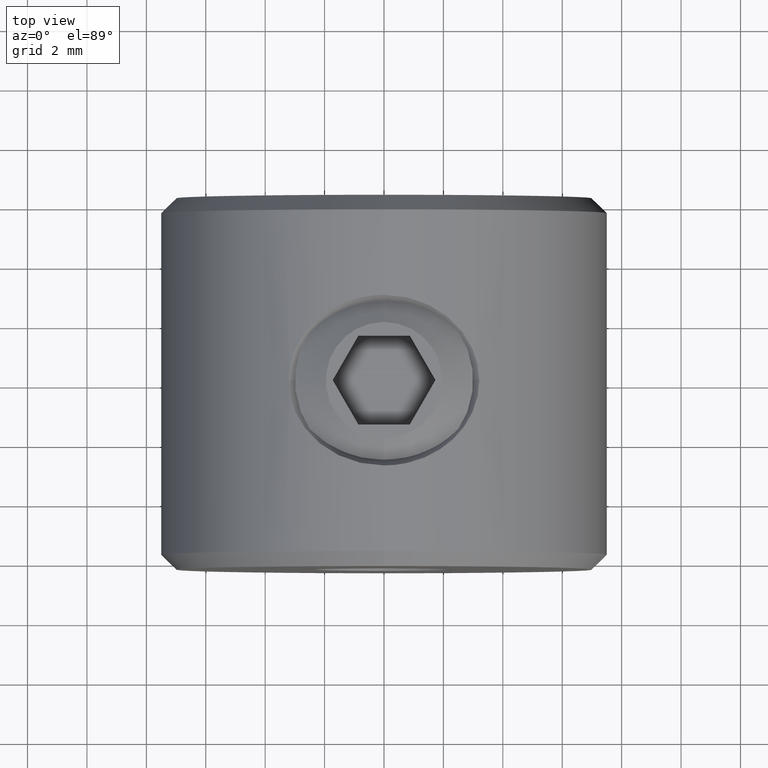
[diagram: clean part render]
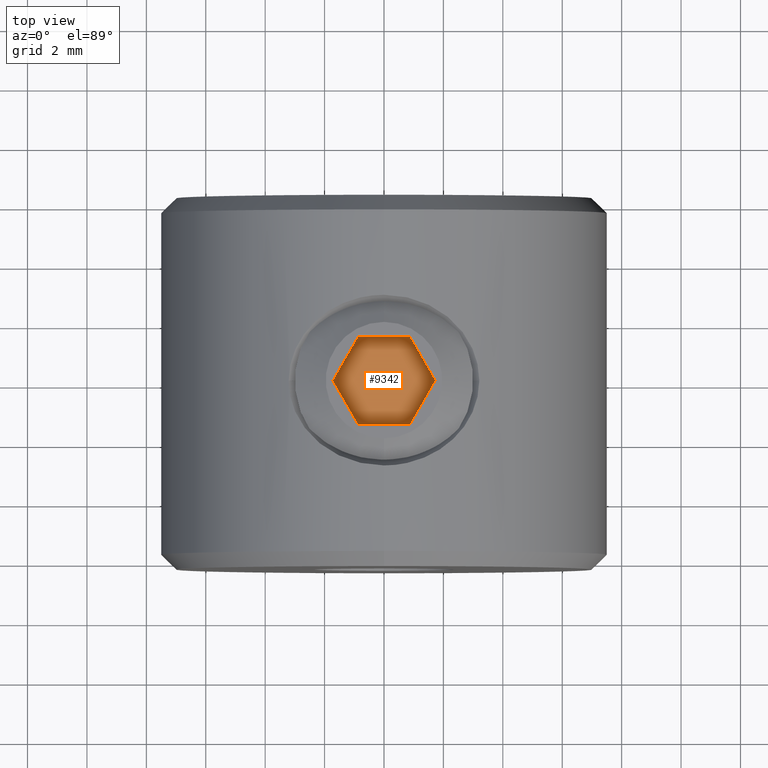
[diagram: same view with one face highlighted and labeled with its STEP entity id]
A machine part, top view. The second image highlights one B-rep face of the part: STEP entity #9342.
In plain terms, the highlighted planar face has unit normal (0, 0, -1).
Its self-contained STEP definition (entity closure, byte-faithful):
#266 = EDGE_CURVE ( 'NONE', #14109, #14156, #3468, .T. ) ;
#289 = EDGE_CURVE ( 'NONE', #9275, #3736, #9541, .T. ) ;
#522 = CARTESIAN_POINT ( 'NONE',  ( 6.000000000000000000, -1.732050807568877900, 2.774972326148338200E-016 ) ) ;
#685 = VECTOR ( 'NONE', #11016, 1000.000000000000000 ) ;
#714 = ORIENTED_EDGE ( 'NONE', *, *, #2842, .T. ) ;
#890 = ORIENTED_EDGE ( 'NONE', *, *, #11838, .T. ) ;
#1255 = ORIENTED_EDGE ( 'NONE', *, *, #266, .T. ) ;
#1730 = DIRECTION ( 'NONE',  ( 0.0000000000000000000, -1.000000000000000000, 1.251928832280965400E-016 ) ) ;
#1781 = DIRECTION ( 'NONE',  ( 0.0000000000000000000, 0.4999999999999998300, -0.8660254037844387100 ) ) ;
#2151 = ORIENTED_EDGE ( 'NONE', *, *, #6177, .T. ) ;
#2842 = EDGE_CURVE ( 'NONE', #13390, #9275, #3620, .T. ) ;
#3468 = LINE ( 'NONE', #13288, #7493 ) ;
#3500 = CARTESIAN_POINT ( 'NONE',  ( 6.000000000000000000, 0.8660254037844393700, -1.499999999999999300 ) ) ;
#3620 = LINE ( 'NONE', #13001, #9680 ) ;
#3736 = VERTEX_POINT ( 'NONE', #4988 ) ;
#4988 = CARTESIAN_POINT ( 'NONE',  ( 6.000000000000000000, -1.732050807568877900, 2.774972326148338200E-016 ) ) ;
#6044 = DIRECTION ( 'NONE',  ( 0.0000000000000000000, 1.000000000000000000, 0.0000000000000000000 ) ) ;
#6059 = ORIENTED_EDGE ( 'NONE', *, *, #289, .T. ) ;
#6177 = EDGE_CURVE ( 'NONE', #3736, #14109, #13147, .T. ) ;
#6334 = VECTOR ( 'NONE', #13740, 1000.000000000000200 ) ;
#6610 = VERTEX_POINT ( 'NONE', #9982 ) ;
#6924 = FACE_OUTER_BOUND ( 'NONE', #15365, .T. ) ;
#7317 = CARTESIAN_POINT ( 'NONE',  ( 6.000000000000000000, -0.8660254037844398200, -1.499999999999999300 ) ) ;
#7493 = VECTOR ( 'NONE', #6044, 1000.000000000000000 ) ;
#8281 = AXIS2_PLACEMENT_3D ( 'NONE', #8319, #13220, #8445 ) ;
#8319 = CARTESIAN_POINT ( 'NONE',  ( 6.000000000000000000, 6.505213034913026600E-016, 3.000000000000000900 ) ) ;
#8445 = DIRECTION ( 'NONE',  ( 0.0000000000000000000, 0.0000000000000000000, 1.000000000000000000 ) ) ;
#8679 = LINE ( 'NONE', #13429, #685 ) ;
#8739 = DIRECTION ( 'NONE',  ( 0.0000000000000000000, 0.5000000000000001100, 0.8660254037844386000 ) ) ;
#8969 = LINE ( 'NONE', #9942, #9340 ) ;
#9105 = EDGE_CURVE ( 'NONE', #14156, #6610, #8969, .T. ) ;
#9275 = VERTEX_POINT ( 'NONE', #10044 ) ;
#9340 = VECTOR ( 'NONE', #8739, 1000.000000000000100 ) ;
#9342 = ADVANCED_FACE ( 'NONE', ( #6924 ), #10680, .F. ) ;
#9541 = LINE ( 'NONE', #11165, #6334 ) ;
#9680 = VECTOR ( 'NONE', #1730, 1000.000000000000000 ) ;
#9942 = CARTESIAN_POINT ( 'NONE',  ( 6.000000000000000000, 0.8660254037844393700, -1.499999999999999300 ) ) ;
#9982 = CARTESIAN_POINT ( 'NONE',  ( 6.000000000000000000, 1.732050807568877600, -1.618492900178610100E-016 ) ) ;
#10044 = CARTESIAN_POINT ( 'NONE',  ( 6.000000000000000000, -0.8660254037844389300, 1.500000000000000000 ) ) ;
#10212 = ORIENTED_EDGE ( 'NONE', *, *, #9105, .T. ) ;
#10680 = PLANE ( 'NONE',  #8281 ) ;
#11016 = DIRECTION ( 'NONE',  ( 0.0000000000000000000, -0.4999999999999998300, 0.8660254037844387100 ) ) ;
#11165 = CARTESIAN_POINT ( 'NONE',  ( 6.000000000000000000, -0.8660254037844389300, 1.500000000000000000 ) ) ;
#11838 = EDGE_CURVE ( 'NONE', #6610, #13390, #8679, .T. ) ;
#13001 = CARTESIAN_POINT ( 'NONE',  ( 6.000000000000000000, 0.8660254037844393700, 1.499999999999999800 ) ) ;
#13147 = LINE ( 'NONE', #522, #14478 ) ;
#13220 = DIRECTION ( 'NONE',  ( -1.000000000000000000, 0.0000000000000000000, 0.0000000000000000000 ) ) ;
#13288 = CARTESIAN_POINT ( 'NONE',  ( 6.000000000000000000, -0.8660254037844398200, -1.499999999999999300 ) ) ;
#13332 = CARTESIAN_POINT ( 'NONE',  ( 6.000000000000000000, 0.8660254037844393700, 1.499999999999999800 ) ) ;
#13390 = VERTEX_POINT ( 'NONE', #13332 ) ;
#13429 = CARTESIAN_POINT ( 'NONE',  ( 6.000000000000000000, 1.732050807568877600, -1.618492900178610100E-016 ) ) ;
#13740 = DIRECTION ( 'NONE',  ( 0.0000000000000000000, -0.5000000000000001100, -0.8660254037844384900 ) ) ;
#14109 = VERTEX_POINT ( 'NONE', #7317 ) ;
#14156 = VERTEX_POINT ( 'NONE', #3500 ) ;
#14478 = VECTOR ( 'NONE', #1781, 1000.000000000000100 ) ;
#15365 = EDGE_LOOP ( 'NONE', ( #6059, #2151, #1255, #10212, #890, #714 ) ) ;